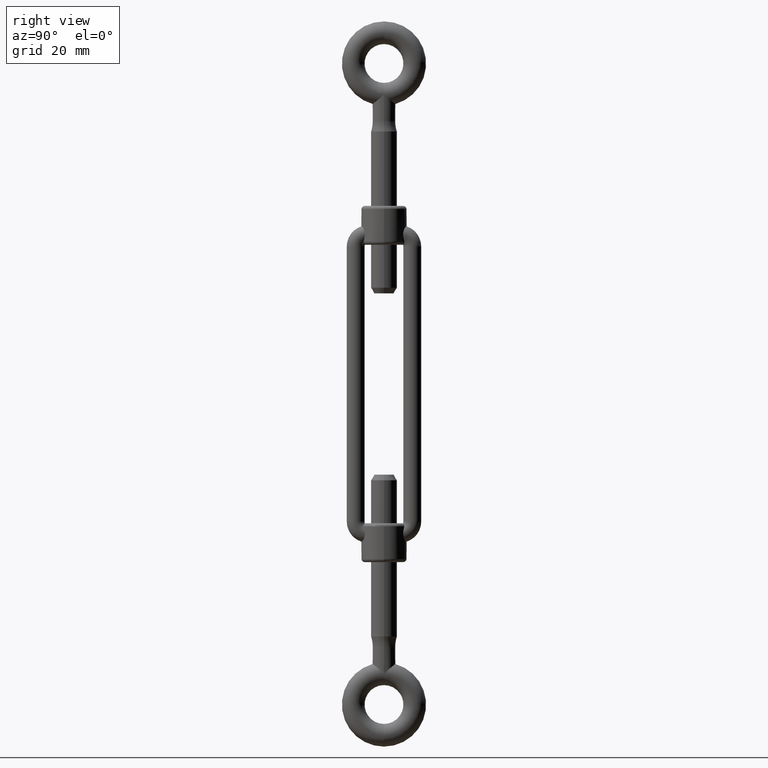
[diagram: clean part render]
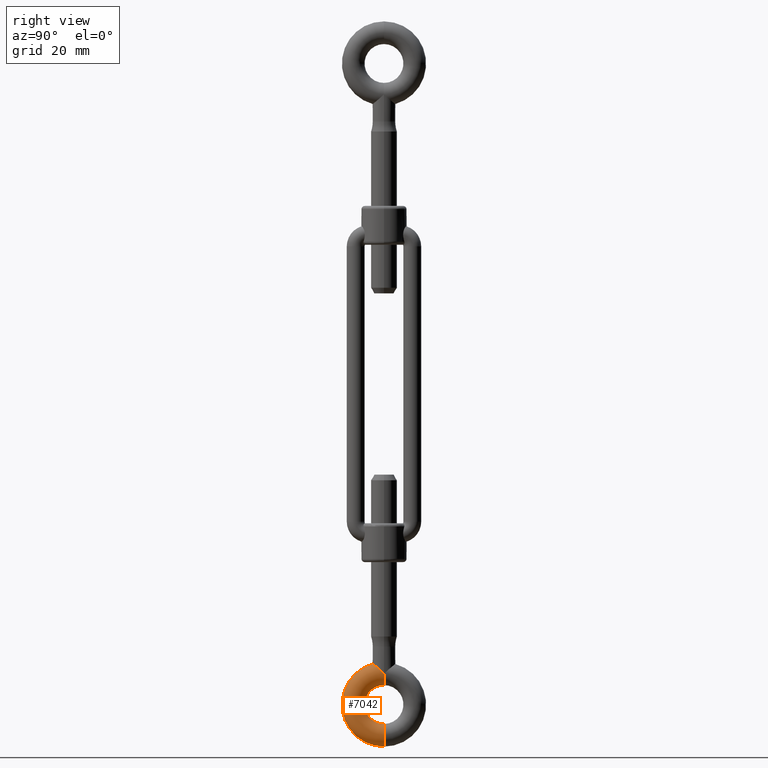
[diagram: same view with one face highlighted and labeled with its STEP entity id]
A machine part, right view. The second image highlights one B-rep face of the part: STEP entity #7042.
In plain terms, the highlighted toroidal blend (fillet) surface has major radius 9.5 mm and minor (blend) radius 3.5 mm.
Its self-contained STEP definition (entity closure, byte-faithful):
#13 = CARTESIAN_POINT ( 'NONE',  ( 1.543536652092107000, -23.94067104268992100, 3.168036428234119600 ) ) ;
#746 = DIRECTION ( 'NONE',  ( -0.0000000000000000000, 1.423099621949589700E-016, -1.000000000000000000 ) ) ;
#1122 = CARTESIAN_POINT ( 'NONE',  ( 0.0000000000000000000, -13.00000000000000000, -9.233182611505365700E-016 ) ) ;
#1366 = CARTESIAN_POINT ( 'NONE',  ( 1.163414459189985500E-015, -22.50000000000000000, -2.703889281704220400E-015 ) ) ;
#1472 = AXIS2_PLACEMENT_3D ( 'NONE', #2535, #13627, #4122 ) ;
#2535 = CARTESIAN_POINT ( 'NONE',  ( 0.0000000000000000000, -13.00000000000000000, -1.351944640852110200E-015 ) ) ;
#2714 = VERTEX_POINT ( 'NONE', #12953 ) ;
#2734 = ORIENTED_EDGE ( 'NONE', *, *, #10073, .T. ) ;
#2745 = DIRECTION ( 'NONE',  ( -0.0000000000000000000, 1.423099621949589700E-016, -1.000000000000000000 ) ) ;
#2792 = EDGE_CURVE ( 'NONE', #12631, #15722, #7817, .T. ) ;
#2815 = AXIS2_PLACEMENT_3D ( 'NONE', #1366, #4551, #7681 ) ;
#3210 = CIRCLE ( 'NONE', #10819, 6.000000000000000000 ) ;
#3242 = CARTESIAN_POINT ( 'NONE',  ( 2.902679239955599800, -25.05880945412449600, 1.970392584070682000 ) ) ;
#4122 = DIRECTION ( 'NONE',  ( 0.0000000000000000000, 1.000000000000000000, 1.423099621949589700E-016 ) ) ;
#4298 = TOROIDAL_SURFACE ( 'NONE', #1472, 9.500000000000000000, 3.500000000000000000 ) ;
#4325 = ORIENTED_EDGE ( 'NONE', *, *, #10887, .F. ) ;
#4543 = CARTESIAN_POINT ( 'NONE',  ( 0.0000000000000000000, -3.499999999999999600, 0.0000000000000000000 ) ) ;
#4551 = DIRECTION ( 'NONE',  ( 1.000000000000000000, 1.224646799147353200E-016, 1.742794396888373400E-032 ) ) ;
#4589 = CARTESIAN_POINT ( 'NONE',  ( 0.0000000000000000000, -7.000000000000000000, -9.233182611505367700E-016 ) ) ;
#4753 = CARTESIAN_POINT ( 'NONE',  ( 1.919491053654562000, -24.26065888321072400, 2.962202737810723200 ) ) ;
#4887 = CARTESIAN_POINT ( 'NONE',  ( 2.441933532437921900, -24.69047750232938300, 2.517783422853038900 ) ) ;
#5473 = CARTESIAN_POINT ( 'NONE',  ( 0.0000000000000000000, -13.00000000000000000, -1.351944640852110200E-015 ) ) ;
#6788 = CARTESIAN_POINT ( 'NONE',  ( 3.500000000000000000, -25.51998402554891100, -6.372052715275416000E-014 ) ) ;
#7042 = ADVANCED_FACE ( 'NONE', ( #18707 ), #4298, .T. ) ;
#7546 = VERTEX_POINT ( 'NONE', #4589 ) ;
#7681 = DIRECTION ( 'NONE',  ( -1.224646799147353500E-016, 1.000000000000000000, 0.0000000000000000000 ) ) ;
#7735 = CARTESIAN_POINT ( 'NONE',  ( -3.821045009664275900E-028, -22.50000000000000000, 3.500000000000049700 ) ) ;
#7805 = CARTESIAN_POINT ( 'NONE',  ( 2.605455525405231400, -24.82233626972369600, 2.349381878402336400 ) ) ;
#7817 = CIRCLE ( 'NONE', #8463, 13.00000000000000000 ) ;
#7954 = CARTESIAN_POINT ( 'NONE',  ( 0.4787127204556428900, -22.96763907386420600, 3.468484147204039300 ) ) ;
#8018 = CARTESIAN_POINT ( 'NONE',  ( 3.461299286705712000, -25.49058939388098500, 0.5359879684070549800 ) ) ;
#8463 = AXIS2_PLACEMENT_3D ( 'NONE', #5473, #746, #14932 ) ;
#8556 = ORIENTED_EDGE ( 'NONE', *, *, #2792, .F. ) ;
#9431 = CARTESIAN_POINT ( 'NONE',  ( 0.09425033023384338200, -22.59420885472855300, 3.499999999999997800 ) ) ;
#9481 = CARTESIAN_POINT ( 'NONE',  ( 7.347880794884117800E-016, -19.00000000000000000, -9.233182611505363700E-016 ) ) ;
#10073 = EDGE_CURVE ( 'NONE', #12064, #2714, #10860, .T. ) ;
#10819 = AXIS2_PLACEMENT_3D ( 'NONE', #1122, #2745, #13829 ) ;
#10860 = CIRCLE ( 'NONE', #2815, 3.499999999999999600 ) ;
#10887 = EDGE_CURVE ( 'NONE', #7546, #12631, #17349, .T. ) ;
#11141 = CARTESIAN_POINT ( 'NONE',  ( 0.3825471448840509500, -22.87557929017480500, 3.480361131422516200 ) ) ;
#12064 = VERTEX_POINT ( 'NONE', #9481 ) ;
#12442 = DIRECTION ( 'NONE',  ( -1.000000000000000000, 0.0000000000000000000, 0.0000000000000000000 ) ) ;
#12504 = ORIENTED_EDGE ( 'NONE', *, *, #16621, .F. ) ;
#12631 = VERTEX_POINT ( 'NONE', #16910 ) ;
#12953 = CARTESIAN_POINT ( 'NONE',  ( -3.821045009664275900E-028, -22.50000000000000000, 3.500000000000049700 ) ) ;
#13324 = AXIS2_PLACEMENT_3D ( 'NONE', #4543, #12442, #14331 ) ;
#13627 = DIRECTION ( 'NONE',  ( -0.0000000000000000000, 1.423099621949589700E-016, -1.000000000000000000 ) ) ;
#13829 = DIRECTION ( 'NONE',  ( 0.0000000000000000000, 1.000000000000000000, 1.423099621949589700E-016 ) ) ;
#14138 = ORIENTED_EDGE ( 'NONE', *, *, #18612, .T. ) ;
#14277 = CARTESIAN_POINT ( 'NONE',  ( 3.492102180934886200, -25.51399530113730300, 0.2703668107153683900 ) ) ;
#14331 = DIRECTION ( 'NONE',  ( 0.0000000000000000000, 0.0000000000000000000, 1.000000000000000000 ) ) ;
#14416 = CARTESIAN_POINT ( 'NONE',  ( 3.500000000000002200, -25.51998402554891100, 0.1342854155620091800 ) ) ;
#14932 = DIRECTION ( 'NONE',  ( 0.0000000000000000000, 1.000000000000000000, 1.423099621949589700E-016 ) ) ;
#15722 = VERTEX_POINT ( 'NONE', #6788 ) ;
#15750 = CARTESIAN_POINT ( 'NONE',  ( 3.348551098834796800, -25.40461861258253900, 1.052062384014157000 ) ) ;
#15820 = CARTESIAN_POINT ( 'NONE',  ( 0.9615379862456622200, -23.41870881430699200, 3.371599731989129100 ) ) ;
#15895 = CARTESIAN_POINT ( 'NONE',  ( 3.438466702932181400, -25.47322694282251400, 0.6665989522704136600 ) ) ;
#16030 = CARTESIAN_POINT ( 'NONE',  ( 0.7678722086124680800, -23.24073825641036000, 3.420316485907070700 ) ) ;
#16621 = EDGE_CURVE ( 'NONE', #15722, #2714, #18680, .T. ) ;
#16910 = CARTESIAN_POINT ( 'NONE',  ( 0.0000000000000000000, 2.168404344971008900E-016, 4.980848676823563500E-016 ) ) ;
#17349 = CIRCLE ( 'NONE', #13324, 3.500000000000000000 ) ;
#17453 = EDGE_LOOP ( 'NONE', ( #8556, #4325, #14138, #2734, #12504 ) ) ;
#17475 = CARTESIAN_POINT ( 'NONE',  ( 3.037239705383246900, -25.16408423824211100, 1.757704318315005800 ) ) ;
#17542 = CARTESIAN_POINT ( 'NONE',  ( 3.500000000000000000, -25.51998402554891100, -6.372052715275416000E-014 ) ) ;
#18612 = EDGE_CURVE ( 'NONE', #7546, #12064, #3210, .T. ) ;
#18680 = B_SPLINE_CURVE_WITH_KNOTS ( 'NONE', 3,
 ( #17542, #14416, #14277, #8018, #15895, #15750, #18932, #17475, #3242, #7805, #4887, #4753, #13, #15820, #16030, #7954, #11141, #20548, #9431, #7735 ),
 .UNSPECIFIED., .F., .F.,
 ( 4, 2, 2, 2, 2, 2, 2, 2, 2, 4 ),
 ( 0.006396518288800824700, 0.006796300458568284000, 0.007196082628335743200, 0.007995646967870664200, 0.008795211307405582600, 0.009594775646940502700, 0.01119390432601034300, 0.01199346866554526500, 0.01239325083531272700, 0.01279303300508018900 ),
 .UNSPECIFIED. ) ;
#18707 = FACE_OUTER_BOUND ( 'NONE', #17453, .T. ) ;
#18932 = CARTESIAN_POINT ( 'NONE',  ( 3.258954482003767700, -25.33602553948555800, 1.301370501743174700 ) ) ;
#20548 = CARTESIAN_POINT ( 'NONE',  ( 0.1907781946933011000, -22.68934756642081000, 3.496120650607630300 ) ) ;